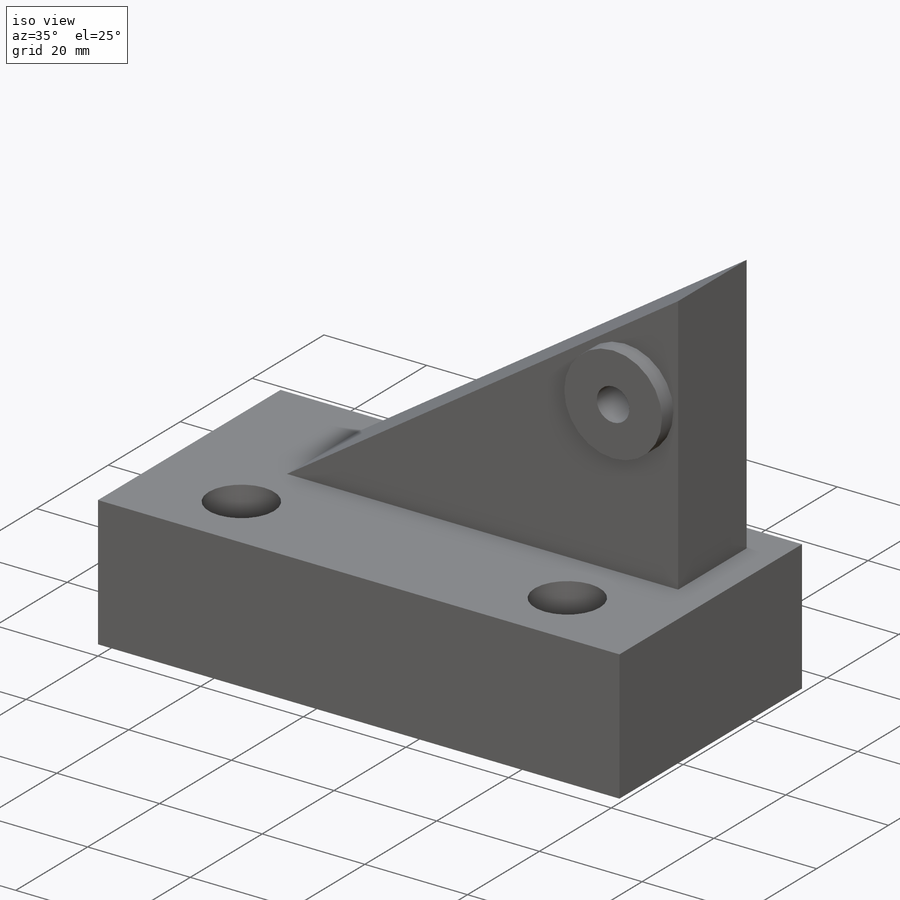
[diagram: iso view]
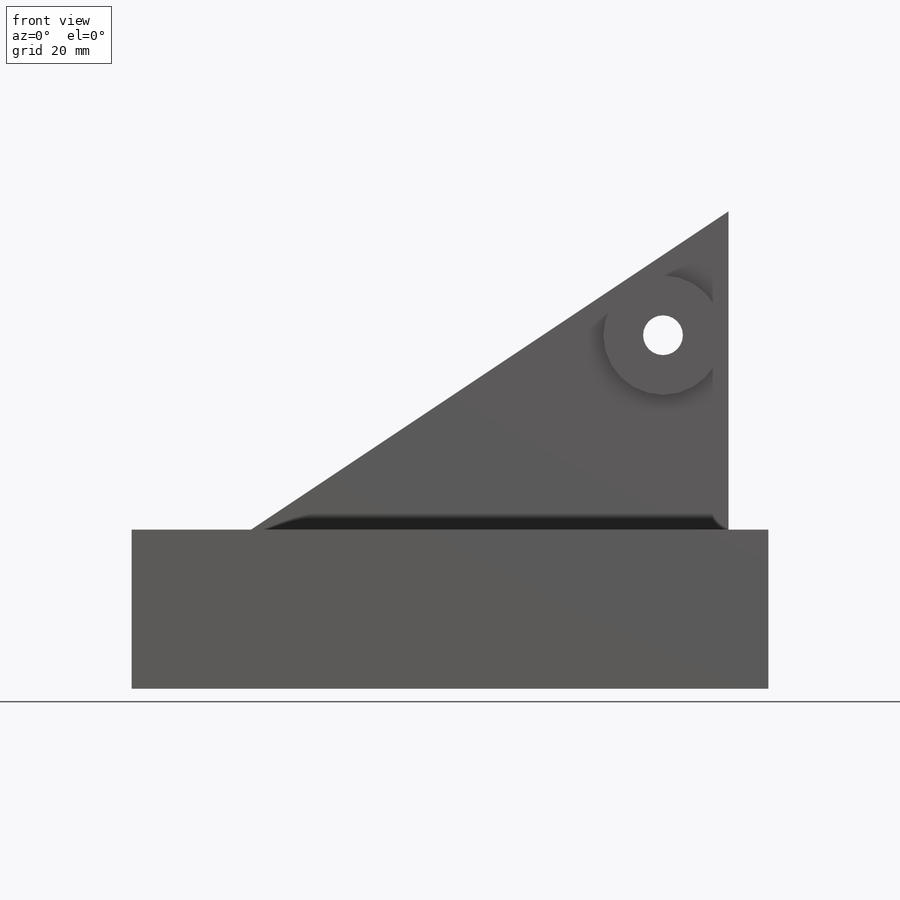
[diagram: front view]
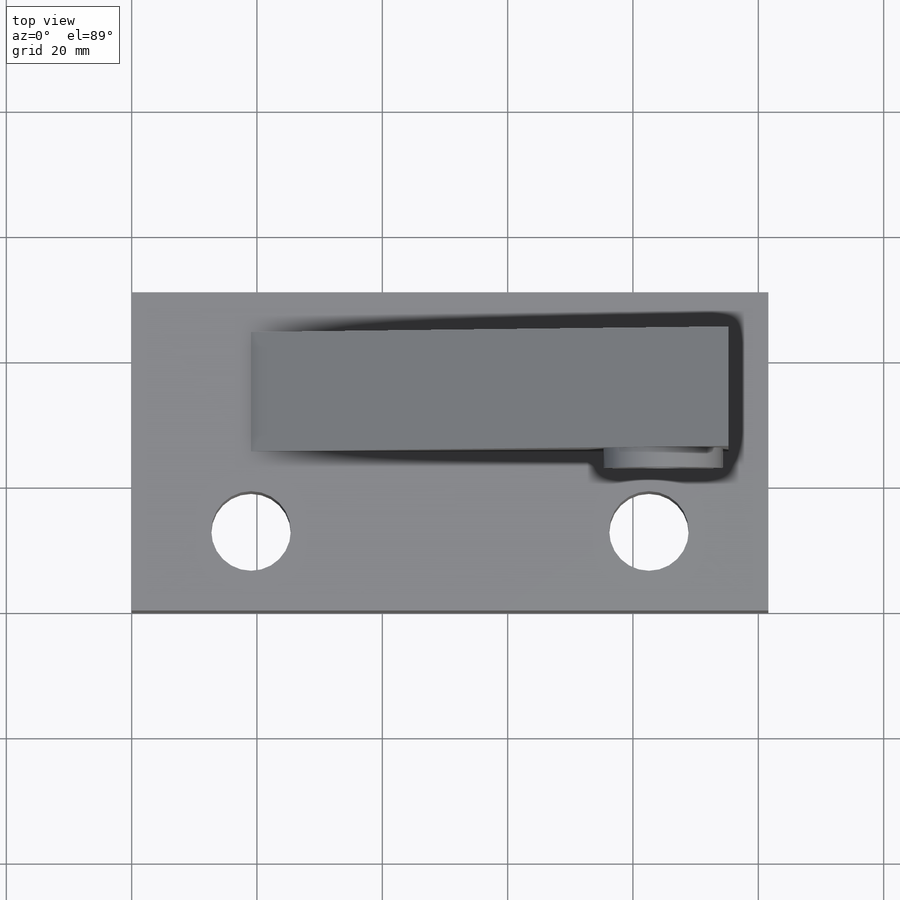
[diagram: top view]
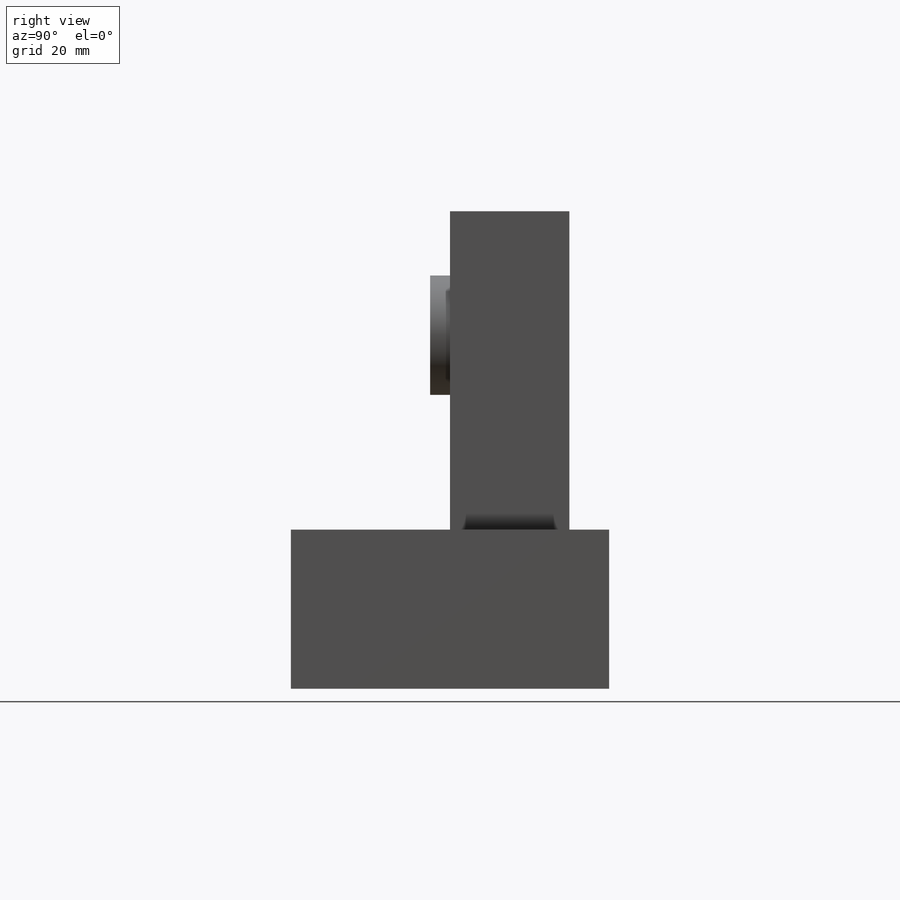
[diagram: right view]
SOLIDWORKS PART (.sldprt)
format: sldprt  version: not decoded by parser v0  size: 182,784 bytes
history: native  units: mm
features: sketch x6, extrude x3, cut_extrude x3, material x1 (+12 scaffold rows collapsed)
feature tree (25):
  scaffold x12  (default folders/planes/origin — collapsed)
  material  "Alloy Steel"
  sketch  "Sketch1"  dims[D1=101.6mm D2=50.8mm]
  extrude  "Boss-Extrude1"  Depth=25.4mm
  sketch  "Sketch2"  dims[D1=19.05mm D2=6.35mm D3=95.25mm D4=25.4mm]
  extrude  "Boss-Extrude2"  Depth=50.8mm
  sketch  "Sketch3"
  cut_extrude  "Cut-Extrude1"  [1 undecoded]
  sketch  "Sketch4"  dims[D1=6.35mm D2=19.05mm]
  cut_extrude  "Cut-Extrude3"  [1 undecoded]
  extrude  "Boss-Extrude3"  [1 undecoded]
  sketch  "Sketch4<3>"  dims[D1=3.175mm]
  sketch  "Sketch5"  dims[D3=12.7mm D4=12.7mm D1=19.05mm D2=19.05mm D5=12.7mm D6=12.7mm]
  cut_extrude  "Cut-Extrude4"  [1 undecoded]
decode coverage: 7 of 12 modeling features carry decoded parameters
note: 4 parameter values undecoded
summary: no parameter record found for 4 features
note: suppression state not decoded; provenance and decode notes live in map.json
